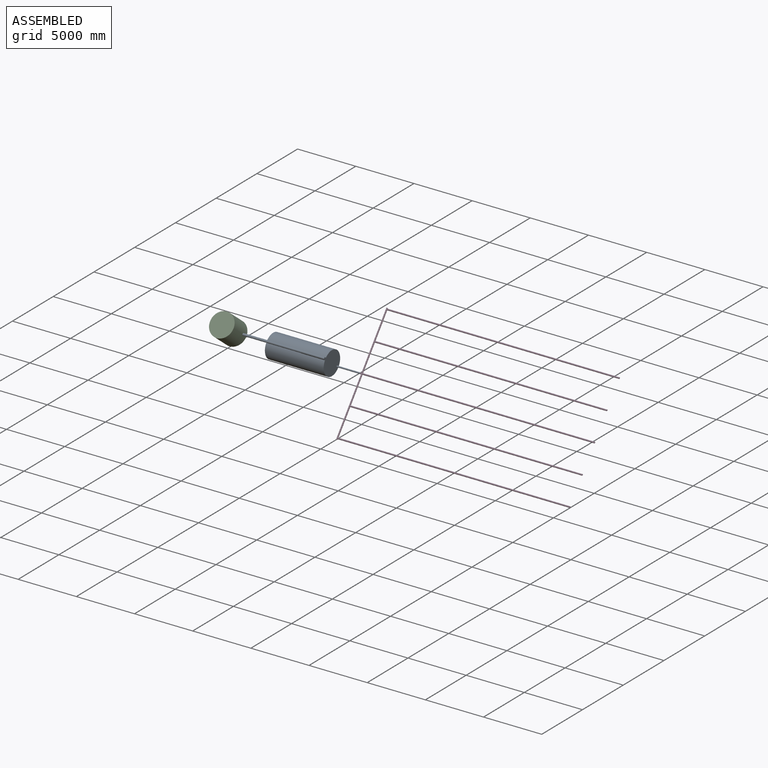
[diagram: assembled view]
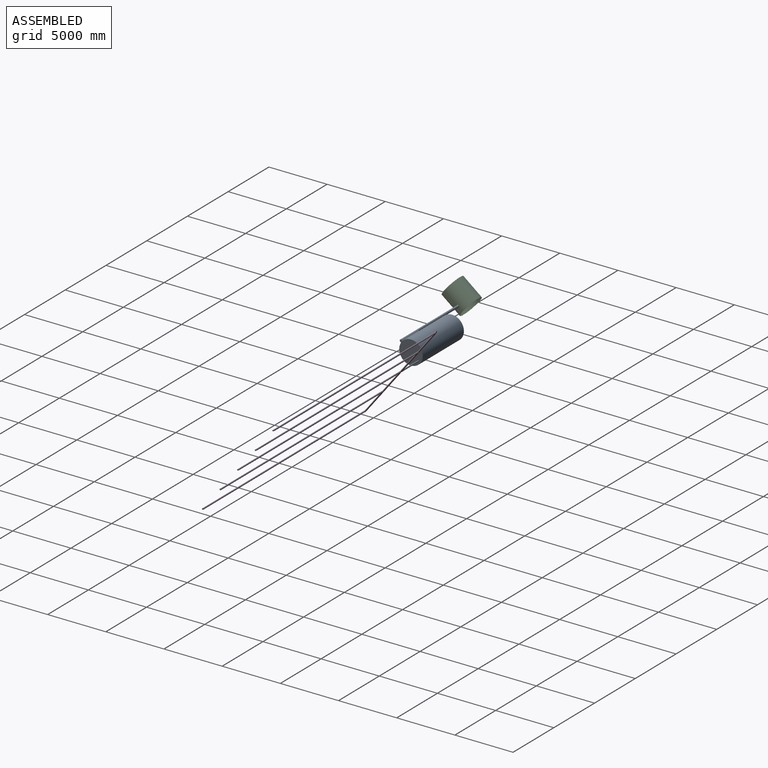
[diagram: assembled view, second angle]
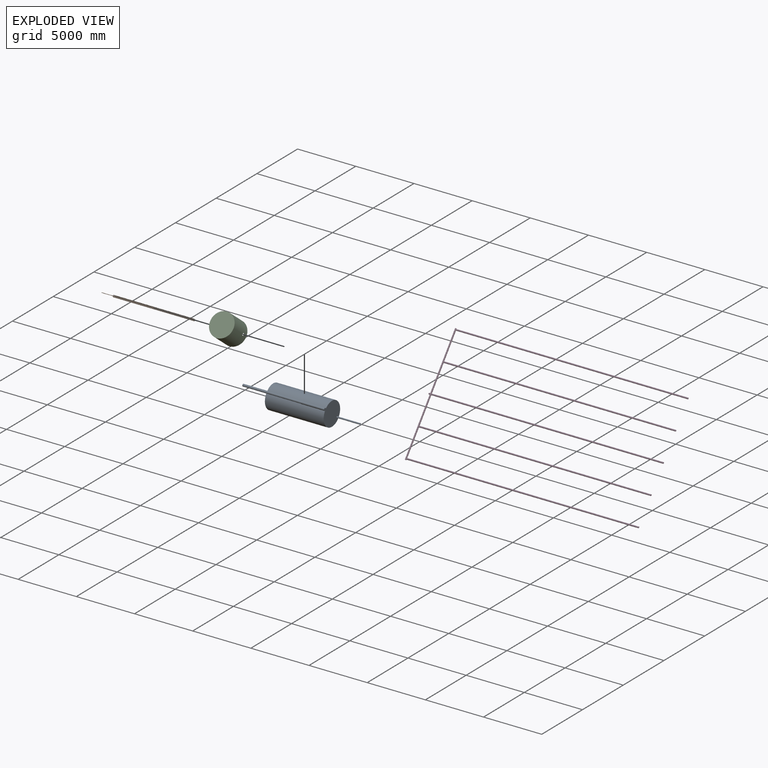
[diagram: exploded view]
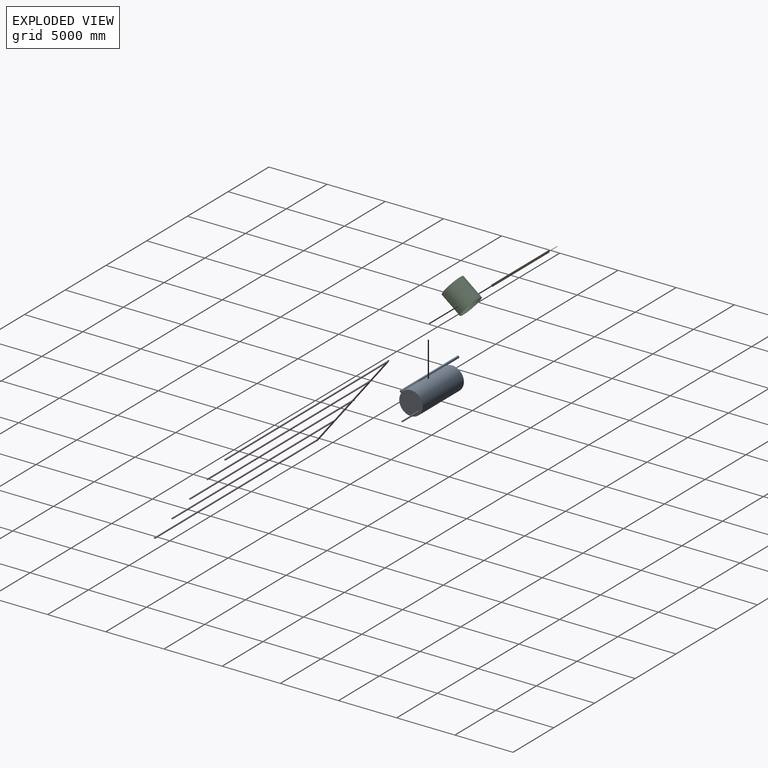
[diagram: exploded view, second angle]
ASSEMBLY  parts=4 mates=3
PART A: 21 faces, bbox 2020x2214x9025 mm
  f0: cylinder r=1010mm len=3025mm, axis (0,0,-1), area 79554.6mm2, adj f2,f11,f16
  f1: cylinder r=1000mm len=5000mm, axis (0,0,-1), area 31035352.6mm2, adj f9,f10,f11,f13,f17
  f2: cylinder r=95mm len=7000mm, axis (0,0,-1), area 3501607mm2, adj f0,f9,f10,f11,f12,f13,f16
  f3: cylinder r=100mm len=7025mm, axis (0,0,-1), area 3574204.5mm2, adj f4,f5,f6,f7,f8,f12,f14,f15
  f4: cylinder r=1010mm len=5050mm, axis (0,0,-1), area 31442935.2mm2, adj f3,f5,f6,f7,f8,f14,f15
  f5: plane 2035x98.96mm, normal (-1,0,0), area 201389.1mm2, adj f3,f4,f6,f14
  f6: plane 98.96x67.37mm, normal (0,0,1), area 1842.5mm2, adj f3,f4,f5
  f7: plane 2035x98.96mm, normal (1,0,0), area 201389.1mm2, adj f3,f4,f8,f14
  f8: plane 98.96x67.37mm, normal (0,0,1), area 1842.5mm2, adj f3,f4,f7
  f9: plane 2000x108.52mm, normal (-1,0,0), area 217045.5mm2, adj f1,f2,f11,f13
  f10: plane 2000x108.52mm, normal (1,0,0), area 217045.5mm2, adj f1,f2,f11,f13
  f11: plane 190x108.52mm, normal (0,0,-1), area 5887.3mm2, adj f0,f1,f2,f9,f10
  f12: plane 200x200mm, normal (0,0,1), area 3063.1mm2, adj f2,f3
  f13: plane 2199x2000mm, normal (0,0,1), area 3167961.3mm2, adj f1,f2,f9,f10,f18
  f14: plane 2214x2020mm, normal (0,0,-1), area 3228267.4mm2, adj f3,f4,f5,f7,f20
  f15: plane 2020x2019.47mm, normal (0,0,1), area 3204476.3mm2, adj f3,f4
  f16: plane 26.3x1mm, normal (0,0,1), area 17.5mm2, adj f0,f2
  f17: plane 2000x2000mm, normal (0,0,-1), area 3141592.7mm2, adj f1
  f18: cylinder r=50mm len=2025mm, axis (0,0,1), area 636172.5mm2, adj f13,f19
  f19: plane 120x120mm, normal (0,0,-1), area 3455.8mm2, adj f18,f20
  f20: cylinder r=60mm len=2000mm, axis (0,0,1), area 753982.2mm2, adj f14,f19
PART B: 8 faces, bbox 182.3x185x8000 mm
  f0: plane 70.77x10mm, normal (0,0,1), area 703mm2, adj f2,f3,f4,f6
  f1: plane 110.14x40mm, normal (0,0,-1), area 1959.7mm2, adj f2,f3,f4,f5
  f2: bspline ~7000x184.63mm, area 2482515mm2, adj f0,f1,f3,f5
  f3: bspline ~7000x185.01mm, area 69815mm2, adj f0,f1,f2,f4
  f4: bspline ~7000x184.63mm, area 2482515mm2, adj f0,f1,f3,f5
  f5: bspline ~7000x76.6mm, area 806132.8mm2, adj f1,f2,f4,f6
  f6: cylinder r=20mm len=1000mm, axis (0,0,-1), area 125663.7mm2, adj f0,f5,f7
  f7: plane 40x40mm, normal (0,0,1), area 1256.6mm2, adj f6
PART C: 7 faces, bbox 2020x2020x2000 mm
  f0: cylinder r=1000mm len=2000mm, axis (0,0,-1), area 12346012.8mm2, adj f2,f4,f5,f6
  f1: cylinder r=1010mm len=2020mm, axis (0,0,-1), area 12628758.7mm2, adj f2,f3,f5,f6
  f2: plane 2020x2020mm, normal (0,0,1), area 63146mm2, adj f0,f1
  f3: plane 2020x2020mm, normal (0,0,-1), area 3204738.7mm2, adj f1
  f4: plane 2000x2000mm, normal (0,0,1), area 3141592.7mm2, adj f0
  f5: cylinder r=100mm len=200mm, axis (0,1,0), area 6298.8mm2, adj f0,f1
  f6: cylinder r=100mm len=200mm, axis (0,1,0), area 6298.8mm2, adj f0,f1
PART D: 29 faces, bbox 20150x120x10000 mm
  f0: cylinder r=60mm len=5000mm, axis (0,0,-1), area 1841755.6mm2, adj f3,f5,f9,f13,f26
  f1: cylinder r=60mm len=5000mm, axis (0,0,-1), area 1841755.6mm2, adj f2,f13,f17,f21,f26
  f2: plane 120x120mm, normal (0,0,1), area 3455.8mm2, adj f1,f28
  f3: plane 120x120mm, normal (0,0,-1), area 3455.8mm2, adj f0,f28
  f4: plane 120x120mm, normal (1,0,0), area 3455.8mm2, adj f5,f6
  f5: cylinder r=60mm len=20000mm, axis (-1,0,0), area 7525422.4mm2, adj f0,f4
  f6: cylinder r=50mm len=19966.84mm, axis (-1,0,0), area 6268244.6mm2, adj f4,f7
  f7: cylinder r=60mm len=100mm, axis (0,0,-1), area 8833.8mm2, adj f6
  f8: plane 120x120mm, normal (1,0,0), area 3455.8mm2, adj f9,f10
  f9: cylinder r=60mm len=20000mm, axis (-1,0,0), area 7525422.4mm2, adj f0,f8
  f10: cylinder r=50mm len=19966.84mm, axis (-1,0,0), area 6268244.6mm2, adj f8,f11
  f11: cylinder r=60mm len=100mm, axis (0,0,-1), area 8833.8mm2, adj f10
  f12: plane 120x120mm, normal (1,0,0), area 3455.8mm2, adj f13,f14
  f13: cylinder r=60mm len=20000mm, axis (-1,0,0), area 7525422.4mm2, adj f0,f1,f12
  f14: cylinder r=50mm len=19966.84mm, axis (-1,0,0), area 6268244.6mm2, adj f12,f15
  f15: cylinder r=60mm len=100mm, axis (0,0,-1), area 8833.8mm2, adj f14
  f16: plane 120x120mm, normal (1,0,0), area 3455.8mm2, adj f17,f18
  f17: cylinder r=60mm len=20000mm, axis (-1,0,0), area 7525422.4mm2, adj f1,f16
  f18: cylinder r=50mm len=19966.84mm, axis (-1,0,0), area 6268244.6mm2, adj f16,f19
  f19: cylinder r=60mm len=100mm, axis (0,0,-1), area 8833.8mm2, adj f18
  f20: plane 120x120mm, normal (1,0,0), area 3455.8mm2, adj f21,f22
  f21: cylinder r=60mm len=20000mm, axis (-1,0,0), area 7525422.4mm2, adj f1,f20
  f22: cylinder r=50mm len=19966.84mm, axis (-1,0,0), area 6268244.6mm2, adj f20,f23
  f23: cylinder r=60mm len=100mm, axis (0,0,-1), area 8833.8mm2, adj f22
  f24: plane 120x120mm, normal (-1,0,0), area 3455.8mm2, adj f25,f26
  f25: cylinder r=50mm len=116.84mm, axis (1,0,0), area 32184.6mm2, adj f24,f27
  f26: cylinder r=60mm len=150mm, axis (1,0,0), area 42148.7mm2, adj f0,f1,f24
  f27: cylinder r=60mm len=100mm, axis (0,0,-1), area 8831.4mm2, adj f25
  f28: cylinder r=50mm len=10000mm, axis (0,0,-1), area 3141592.7mm2, adj f2,f3
PLACE A rot(axis=(-0.31,-0.9,0.31),96.1deg) t=(-5894.94,7613.45,-9401.03)mm
PLACE B rot(axis=(-0.49,-0.73,0.49),108deg) t=(-12894.94,6745.36,-8718.95)mm
PLACE C rot(axis=(-0.67,0.67,0.33),144deg) t=(-13897.43,5565.89,-7792.21)mm
PLACE D rot(axis=(-1,0,0),38.2deg) t=(-3719.94,5153.37,-13826.86)mm
MATE fastened A.f18 <-> D.f13  axis (1,0,0) through (-3869.94,8242.5,-9895.29)mm
MATE revolute A.f2 <-> B.f6  axis (-1,0,0) through (-5894.94,6745.36,-8718.95)mm
MATE revolute A.f2 <-> C.f5  axis (-1,0,0) through (-12894.94,6745.36,-8718.95)mm
